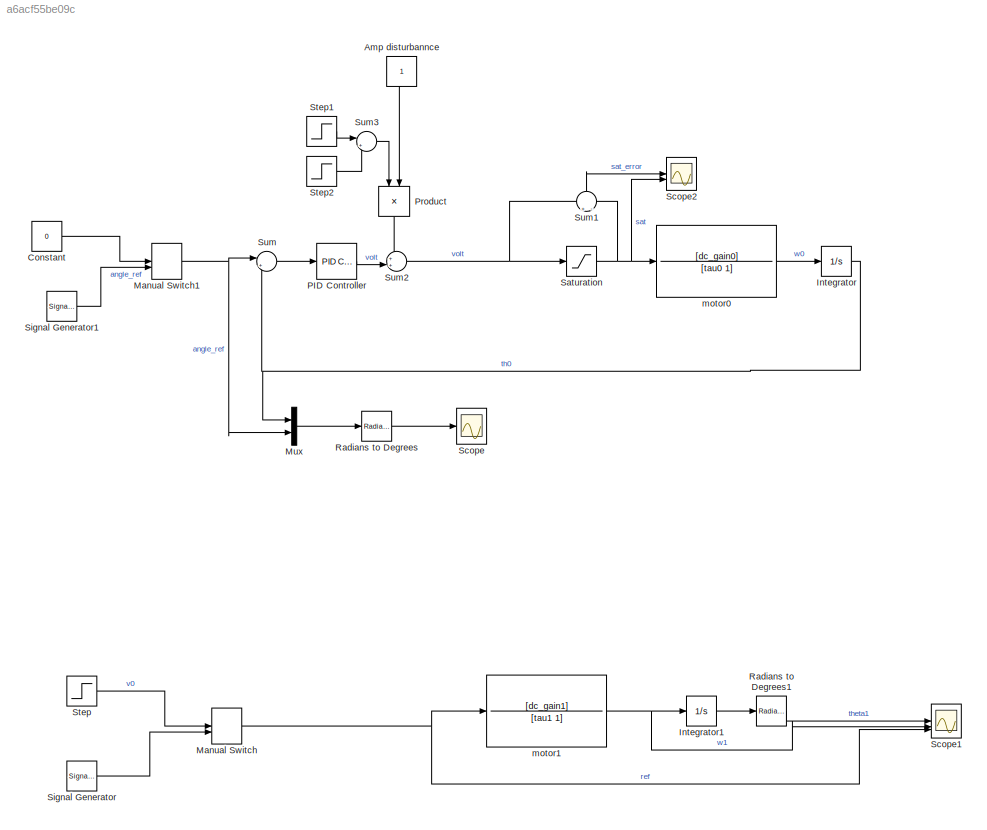
MODEL slx_a6acf55be09c
KIND model
CONFIG AbsTol = auto
CONFIG EnableMultiTasking = off
CONFIG FixedStep = auto
CONFIG MaxStep = auto
CONFIG MinStep = auto
CONFIG RelTol = 1e-3
CONFIG SampleTimeConstraint = Unconstrained
CONFIG SolverName = VariableStepAuto
CONFIG StartTime = 0.0
CONFIG StopTime = 5
BLOCK [Constant] Amp disturbannce
  NameLocation = left
BLOCK [Constant] Constant
  Value = 0
BLOCK [Integrator] Integrator
BLOCK [Integrator] Integrator1
BLOCK [ManualSwitch] Manual Switch
  CurrentSetting = 0
BLOCK [ManualSwitch] Manual Switch1
  CurrentSetting = 0
BLOCK [Mux] Mux
  DisplayOption = bar
  Inputs = 2
BLOCK [Reference] PID Controller  REF=slpidlib/PID Controller
  LibrarySourceBlock = simulink/Continuous/PID Controller
  SourceBlock = slpidlib/PID Controller
  SourceType = PID 1dof
BLOCK [Product] Product
  NameLocation = left
BLOCK [Reference] Radians to Degrees  REF=simulink_extras/Transformations/Radians
to Degrees
  SourceBlock = simulink_extras/Transformations/Radians\nto Degrees
  SourceType = RadiansToDegrees
BLOCK [Reference] Radians to Degrees1  REF=simulink_extras/Transformations/Radians
to Degrees
  SourceBlock = simulink_extras/Transformations/Radians\nto Degrees
  SourceType = RadiansToDegrees
BLOCK [Saturate] Saturation
  LowerLimit = -10
  UpperLimit = 10
BLOCK [Scope] Scope
  Floating = off
  NumInputPorts = 1
  ScopeSpecificationString = Simulink.scopes.TimeScopeBlockCfg('CurrentConfiguration', extmgr.ConfigurationSet(extmgr.Configuration('Core','General UI',true),extmgr.Configuration('Core','Source UI',true),extmgr.Configuration('Sources','WiredSimulink',true),extmgr.Configuration('Visuals','Time Domain',true,'SerializedDisplays',{struct('MinYLimReal','-29.72218','MaxYLimReal','29.72219','YLabelReal','','MinYLimMag','0.00000','Ma...<+1700ch>
BLOCK [Scope] Scope1
  Floating = off
  NumInputPorts = 3
  ScopeSpecificationString = Simulink.scopes.TimeScopeBlockCfg('CurrentConfiguration', extmgr.ConfigurationSet(extmgr.Configuration('Core','General UI',true),extmgr.Configuration('Core','Source UI',true),extmgr.Configuration('Sources','WiredSimulink',true,'DataLoggingVariableName','ScopeData1'),extmgr.Configuration('Visuals','Time Domain',true,'SerializedDisplays',{struct('MinYLimReal','-65.48392','MaxYLimReal','18.3871','YLa...<+1496ch>
BLOCK [Scope] Scope2
  Floating = off
  NumInputPorts = 2
  ScopeSpecificationString = Simulink.scopes.TimeScopeBlockCfg('CurrentConfiguration', extmgr.ConfigurationSet(extmgr.Configuration('Core','General UI',true),extmgr.Configuration('Core','Source UI',true),extmgr.Configuration('Sources','WiredSimulink',true,'DataLoggingVariableName','ScopeData1'),extmgr.Configuration('Visuals','Time Domain',true,'SerializedDisplays',{struct('MinYLimReal','-12.5','MaxYLimReal','12.5','YLabelReal...<+1479ch>
BLOCK [SignalGenerator] Signal Generator
  Amplitude = 10
  Frequency = 26
  Units = rad/sec
BLOCK [SignalGenerator] Signal Generator1
  Amplitude = 0.83/2
  Frequency = 26
  Units = rad/sec
BLOCK [Step] Step
  SampleTime = 0
BLOCK [Step] Step1
  SampleTime = 0
BLOCK [Step] Step2
  After = -1
  SampleTime = 0
  Time = 2
BLOCK [Sum] Sum
  Inputs = |+-
BLOCK [Sum] Sum1
  Inputs = +|-
  NameLocation = right
BLOCK [Sum] Sum2
  Inputs = ++|
BLOCK [Sum] Sum3
  Inputs = |++
BLOCK [TransferFcn] motor0
  ContinuousStateAttributes = "load0_velocity"
  Denominator = [tau0 1]
  Numerator = [dc_gain0]
BLOCK [TransferFcn] motor1
  ContinuousStateAttributes = "load0_velocity"
  Denominator = [tau1 1]
  Numerator = [dc_gain1]
LINE Amp disturbannce:1 -> Product:2
LINE Constant:1 -> Manual Switch1:1
LINE Integrator1:1 -> Radians to Degrees1:1
NET Integrator:1 -> Mux:1, Sum:2
NET Manual Switch1:1 -> Mux:2, Sum:1
NET Manual Switch:1 -> Scope1:3, motor1:1
LINE Mux:1 -> Radians to Degrees:1
LINE PID Controller:1 -> Sum2:2
LINE Product:1 -> Sum2:1
LINE Radians to Degrees1:1 -> Scope1:1
LINE Radians to Degrees:1 -> Scope:1
NET Saturation:1 -> Scope2:2, Sum1:2, motor0:1
LINE Signal Generator1:1 -> Manual Switch1:2
LINE Signal Generator:1 -> Manual Switch:2
LINE Step1:1 -> Sum3:1
LINE Step2:1 -> Sum3:2
LINE Step:1 -> Manual Switch:1
LINE Sum1:1 -> Scope2:1
NET Sum2:1 -> Saturation:1, Sum1:1
LINE Sum3:1 -> Product:1
LINE Sum:1 -> PID Controller:1
LINE motor0:1 -> Integrator:1
NET motor1:1 -> Integrator1:1, Scope1:2
note: NET lines group one-source signal fan-out (src -> all destinations, sorted); 1:1 wires keep LINE
